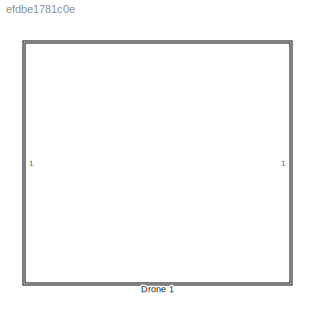
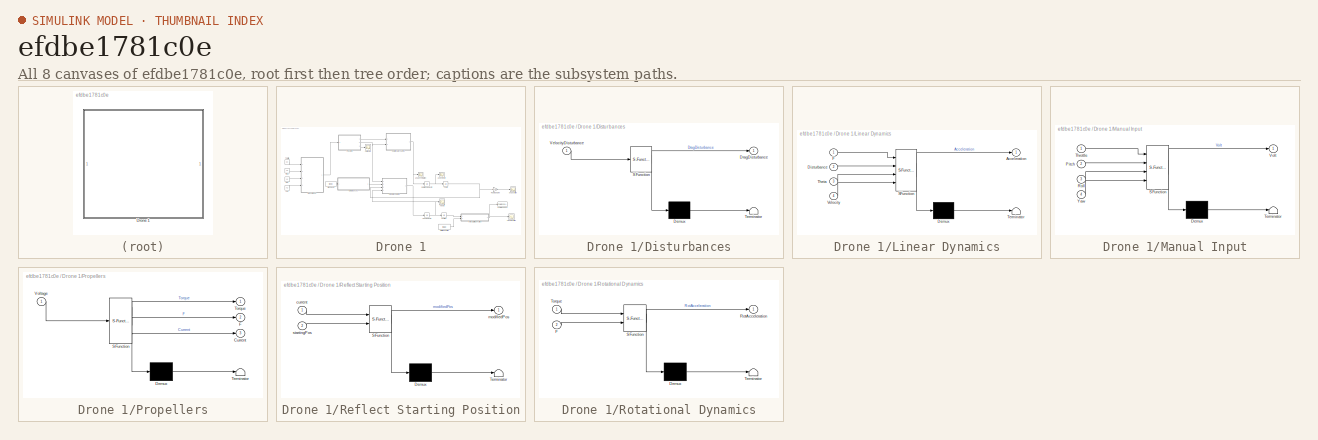
[diagram: thumbnail index - all 8 canvases of the model, root first then tree order]
MODEL slx_efdbe1781c0e
KIND model
CONFIG AbsTol = auto
CONFIG EnableMultiTasking = off
CONFIG FixedStep = auto
CONFIG MaxStep = auto
CONFIG MinStep = auto
CONFIG RelTol = 1e-3
CONFIG SampleTimeConstraint = Unconstrained
CONFIG Solver = VariableStepAuto
CONFIG SolverName = VariableStepAuto
CONFIG StartTime = 0.0
CONFIG StopTime = 5
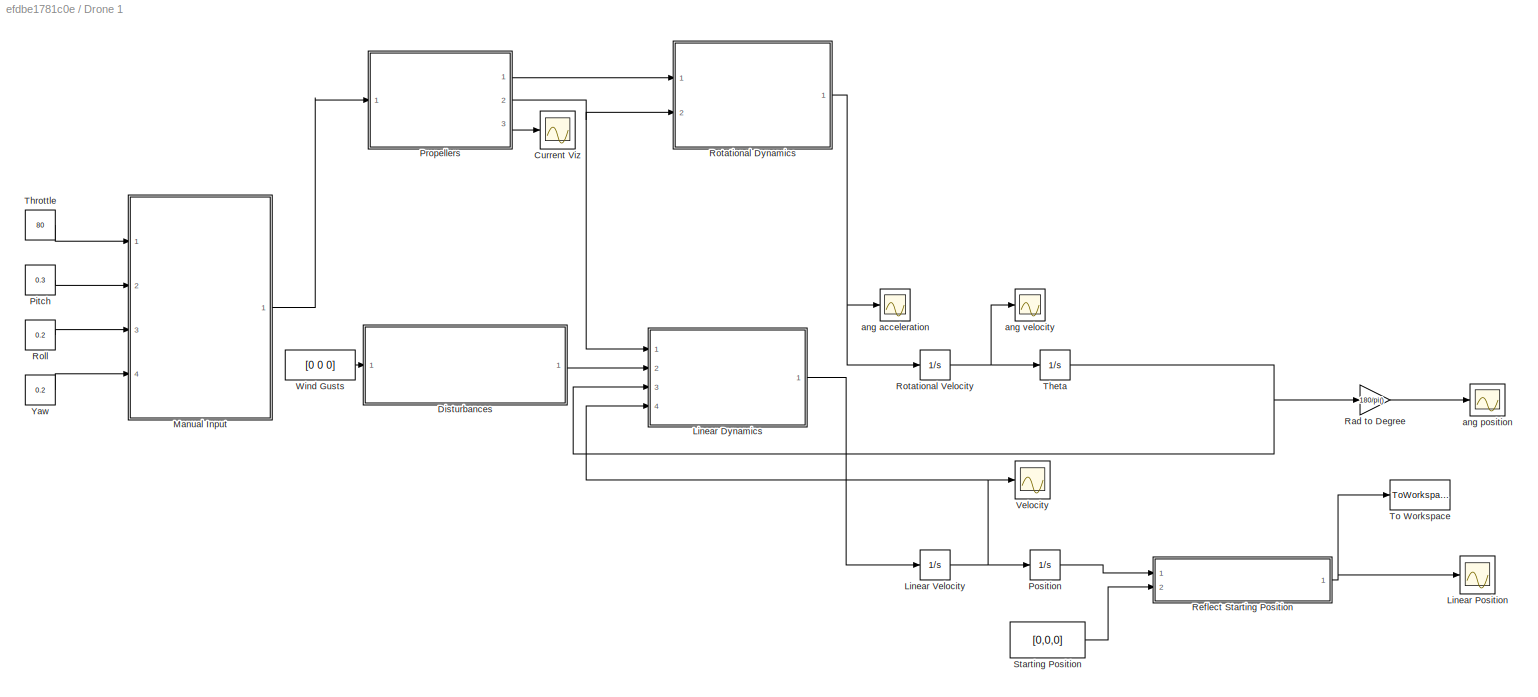
BLOCK [SubSystem] Drone 1
  Ports = []
  RequestExecContextInheritance = off
  Tag = Drone 1
BLOCK [Scope] Drone 1/Current Viz
  Floating = off
  NumInputPorts = 1
  Ports = [1]
  ScopeSpecificationString = Simulink.scopes.TimeScopeBlockCfg('CurrentConfiguration', extmgr.ConfigurationSet(extmgr.Configuration('Core','General UI',true),extmgr.Configuration('Core','Source UI',true),extmgr.Configuration('Sources','WiredSimulink',true,'DataLoggingVariableName','ScopeData4'),extmgr.Configuration('Visuals','Time Domain',true,'SerializedDisplays',{struct('MinYLimReal','54.35041','MaxYLimReal','56.64943','YLa...<+1543ch>
BLOCK [SubSystem] Drone 1/Disturbances
  ErrorFcn = Stateflow.Translate.translate
  PermitHierarchicalResolution = ExplicitOnly
  Ports = [1, 1]
  RequestExecContextInheritance = off
  SFBlockType = MATLAB Function
  TreatAsAtomicUnit = on
BLOCK [Demux] Drone 1/Disturbances/ Demux 
  Outputs = 1
  Ports = [1, 1]
BLOCK [S-Function] Drone 1/Disturbances/ SFunction 
  EnableBusSupport = on
  FunctionName = sf_sfun
  PortCounts = [1 2]
  Ports = [1, 2]
  SFcnIsStateOwnerBlock = off
  SFunctionDeploymentMode = off
  Tag = Stateflow S-Function ModeltheMavic_open_loop 4
BLOCK [Terminator] Drone 1/Disturbances/ Terminator 
BLOCK [Outport] Drone 1/Disturbances/DragDisturbance
  IconDisplay = Port number
BLOCK [Inport] Drone 1/Disturbances/VelocityDisturbance
  IconDisplay = Port number
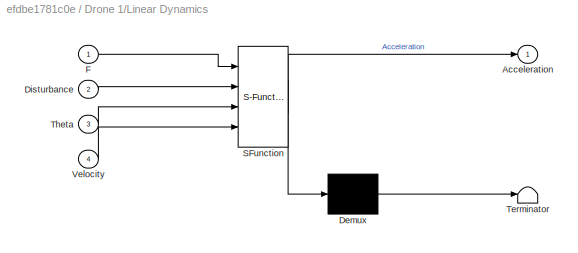
BLOCK [SubSystem] Drone 1/Linear Dynamics
  ErrorFcn = Stateflow.Translate.translate
  PermitHierarchicalResolution = ExplicitOnly
  Ports = [4, 1]
  RequestExecContextInheritance = off
  SFBlockType = MATLAB Function
  TreatAsAtomicUnit = on
BLOCK [Demux] Drone 1/Linear Dynamics/ Demux 
  Outputs = 1
  Ports = [1, 1]
BLOCK [S-Function] Drone 1/Linear Dynamics/ SFunction 
  EnableBusSupport = on
  FunctionName = sf_sfun
  PortCounts = [4 2]
  Ports = [4, 2]
  SFcnIsStateOwnerBlock = off
  SFunctionDeploymentMode = off
  Tag = Stateflow S-Function ModeltheMavic_open_loop 3
BLOCK [Terminator] Drone 1/Linear Dynamics/ Terminator 
BLOCK [Outport] Drone 1/Linear Dynamics/Acceleration
  IconDisplay = Port number
BLOCK [Inport] Drone 1/Linear Dynamics/Disturbance
  IconDisplay = Port number
  Port = 2
BLOCK [Inport] Drone 1/Linear Dynamics/F
  IconDisplay = Port number
BLOCK [Inport] Drone 1/Linear Dynamics/Theta
  IconDisplay = Port number
  Port = 3
BLOCK [Inport] Drone 1/Linear Dynamics/Velocity
  IconDisplay = Port number
  Port = 4
BLOCK [Scope] Drone 1/Linear Position
  Floating = off
  NumInputPorts = 1
  Ports = [1]
  ScopeSpecificationString = Simulink.scopes.TimeScopeBlockCfg('CurrentConfiguration', extmgr.ConfigurationSet(extmgr.Configuration('Core','General UI',true),extmgr.Configuration('Core','Source UI',true),extmgr.Configuration('Sources','WiredSimulink',true,'DataLoggingVariableName','ScopeData5'),extmgr.Configuration('Visuals','Time Domain',true,'SerializedDisplays',{struct('MinYLimReal','-19.83743','MaxYLimReal','70.01672','YL...<+1547ch>
BLOCK [Integrator] Drone 1/Linear Velocity
  Ports = [1, 1]
BLOCK [SubSystem] Drone 1/Manual Input
  ErrorFcn = Stateflow.Translate.translate
  PermitHierarchicalResolution = ExplicitOnly
  Ports = [4, 1]
  RequestExecContextInheritance = off
  SFBlockType = MATLAB Function
  TreatAsAtomicUnit = on
BLOCK [Demux] Drone 1/Manual Input/ Demux 
  Outputs = 1
  Ports = [1, 1]
BLOCK [S-Function] Drone 1/Manual Input/ SFunction 
  EnableBusSupport = on
  FunctionName = sf_sfun
  PortCounts = [4 2]
  Ports = [4, 2]
  SFcnIsStateOwnerBlock = off
  SFunctionDeploymentMode = off
  Tag = Stateflow S-Function ModeltheMavic_open_loop 5
BLOCK [Terminator] Drone 1/Manual Input/ Terminator 
BLOCK [Inport] Drone 1/Manual Input/Pitch
  IconDisplay = Port number
  Port = 2
BLOCK [Inport] Drone 1/Manual Input/Roll
  IconDisplay = Port number
  Port = 3
BLOCK [Inport] Drone 1/Manual Input/Throttle
  IconDisplay = Port number
BLOCK [Outport] Drone 1/Manual Input/Volt
  IconDisplay = Port number
BLOCK [Inport] Drone 1/Manual Input/Yaw
  IconDisplay = Port number
  Port = 4
BLOCK [Constant] Drone 1/Pitch
  Value = 0.3
BLOCK [Integrator] Drone 1/Position
  Ports = [1, 1]
BLOCK [SubSystem] Drone 1/Propellers
  ErrorFcn = Stateflow.Translate.translate
  PermitHierarchicalResolution = ExplicitOnly
  Ports = [1, 3]
  RequestExecContextInheritance = off
  SFBlockType = MATLAB Function
  TreatAsAtomicUnit = on
BLOCK [Demux] Drone 1/Propellers/ Demux 
  Outputs = 1
  Ports = [1, 1]
BLOCK [S-Function] Drone 1/Propellers/ SFunction 
  EnableBusSupport = on
  FunctionName = sf_sfun
  PortCounts = [1 4]
  Ports = [1, 4]
  SFcnIsStateOwnerBlock = off
  SFunctionDeploymentMode = off
  Tag = Stateflow S-Function ModeltheMavic_open_loop 2
BLOCK [Terminator] Drone 1/Propellers/ Terminator 
BLOCK [Outport] Drone 1/Propellers/Current
  IconDisplay = Port number
  Port = 3
BLOCK [Outport] Drone 1/Propellers/F
  IconDisplay = Port number
  Port = 2
BLOCK [Outport] Drone 1/Propellers/Torque
  IconDisplay = Port number
BLOCK [Inport] Drone 1/Propellers/Voltage
  IconDisplay = Port number
BLOCK [Gain] Drone 1/Rad to Degree
  Gain = 180/pi()
  OutDataTypeStr = Inherit: Inherit via internal rule
  ParamDataTypeStr = Inherit: Inherit via internal rule
  SaturateOnIntegerOverflow = off
BLOCK [SubSystem] Drone 1/Reflect Starting Position
  ErrorFcn = Stateflow.Translate.translate
  PermitHierarchicalResolution = ExplicitOnly
  Ports = [2, 1]
  RequestExecContextInheritance = off
  SFBlockType = MATLAB Function
  TreatAsAtomicUnit = on
BLOCK [Demux] Drone 1/Reflect Starting Position/ Demux 
  Outputs = 1
  Ports = [1, 1]
BLOCK [S-Function] Drone 1/Reflect Starting Position/ SFunction 
  EnableBusSupport = on
  FunctionName = sf_sfun
  PortCounts = [2 2]
  Ports = [2, 2]
  SFcnIsStateOwnerBlock = off
  SFunctionDeploymentMode = off
  Tag = Stateflow S-Function ModeltheMavic_open_loop 6
BLOCK [Terminator] Drone 1/Reflect Starting Position/ Terminator 
BLOCK [Inport] Drone 1/Reflect Starting Position/current
  IconDisplay = Port number
BLOCK [Outport] Drone 1/Reflect Starting Position/modifiedPos
  IconDisplay = Port number
BLOCK [Inport] Drone 1/Reflect Starting Position/startingPos
  IconDisplay = Port number
  Port = 2
BLOCK [Constant] Drone 1/Roll
  Value = 0.2
BLOCK [SubSystem] Drone 1/Rotational Dynamics
  ErrorFcn = Stateflow.Translate.translate
  PermitHierarchicalResolution = ExplicitOnly
  Ports = [2, 1]
  RequestExecContextInheritance = off
  SFBlockType = MATLAB Function
  TreatAsAtomicUnit = on
BLOCK [Demux] Drone 1/Rotational Dynamics/ Demux 
  Outputs = 1
  Ports = [1, 1]
BLOCK [S-Function] Drone 1/Rotational Dynamics/ SFunction 
  EnableBusSupport = on
  FunctionName = sf_sfun
  PortCounts = [2 2]
  Ports = [2, 2]
  SFcnIsStateOwnerBlock = off
  SFunctionDeploymentMode = off
  Tag = Stateflow S-Function ModeltheMavic_open_loop 1
BLOCK [Terminator] Drone 1/Rotational Dynamics/ Terminator 
BLOCK [Inport] Drone 1/Rotational Dynamics/F
  IconDisplay = Port number
  Port = 2
BLOCK [Outport] Drone 1/Rotational Dynamics/RotAcceleration
  IconDisplay = Port number
BLOCK [Inport] Drone 1/Rotational Dynamics/Torque
  IconDisplay = Port number
BLOCK [Integrator] Drone 1/Rotational Velocity
  Ports = [1, 1]
BLOCK [Constant] Drone 1/Starting Position
  Value = [0,0,0]
  VectorParams1D = off
BLOCK [Integrator] Drone 1/Theta
  Ports = [1, 1]
BLOCK [Constant] Drone 1/Throttle
  Value = 80
BLOCK [ToWorkspace] Drone 1/To Workspace
  FixptAsFi = on
  MaxDataPoints = inf
  Ports = [1]
  SampleTime = -1
  Save2DSignal = 2-D array (concatenate along first dimension)
  VariableName = Vector
BLOCK [Scope] Drone 1/Velocity 
  Floating = off
  NumInputPorts = 1
  Ports = [1]
  ScopeSpecificationString = Simulink.scopes.TimeScopeBlockCfg('CurrentConfiguration', extmgr.ConfigurationSet(extmgr.Configuration('Core','General UI',true),extmgr.Configuration('Core','Source UI',true),extmgr.Configuration('Sources','WiredSimulink',true),extmgr.Configuration('Visuals','Time Domain',true,'SerializedDisplays',{struct('MinYLimReal','-24.17736','MaxYLimReal','22.3042','YLabelReal','','MinYLimMag','0.00000','Max...<+1410ch>
BLOCK [Constant] Drone 1/Wind Gusts
  Value = [0 0 0]
BLOCK [Constant] Drone 1/Yaw
  Value = 0.2
BLOCK [Scope] Drone 1/ang acceleration
  Floating = off
  NumInputPorts = 1
  Ports = [1]
  ScopeSpecificationString = Simulink.scopes.TimeScopeBlockCfg('CurrentConfiguration', extmgr.ConfigurationSet(extmgr.Configuration('Core','General UI',true),extmgr.Configuration('Core','Source UI',true),extmgr.Configuration('Sources','WiredSimulink',true,'DataLoggingVariableName','ScopeData3'),extmgr.Configuration('Visuals','Time Domain',true,'SerializedDisplays',{struct('MinYLimReal','-0.04674','MaxYLimReal','0.4101','YLabe...<+1490ch>
BLOCK [Scope] Drone 1/ang position 
  Floating = off
  NumInputPorts = 1
  Ports = [1]
  ScopeSpecificationString = Simulink.scopes.TimeScopeBlockCfg('CurrentConfiguration', extmgr.ConfigurationSet(extmgr.Configuration('Core','General UI',true),extmgr.Configuration('Core','Source UI',true),extmgr.Configuration('Sources','WiredSimulink',true,'DataLoggingVariableName','ScopeData2'),extmgr.Configuration('Visuals','Time Domain',true,'SerializedDisplays',{struct('MinYLimReal','-33.4724','MaxYLimReal','293.71416','YL...<+1484ch>
BLOCK [Scope] Drone 1/ang velocity
  Floating = off
  NumInputPorts = 1
  Ports = [1]
  ScopeSpecificationString = Simulink.scopes.TimeScopeBlockCfg('CurrentConfiguration', extmgr.ConfigurationSet(extmgr.Configuration('Core','General UI',true),extmgr.Configuration('Core','Source UI',true),extmgr.Configuration('Sources','WiredSimulink',true,'DataLoggingVariableName','ScopeData1'),extmgr.Configuration('Visuals','Time Domain',true,'SerializedDisplays',{struct('MinYLimReal','-0.23368','MaxYLimReal','2.05051','YLab...<+1497ch>
LINE Drone 1/Disturbances:1 -> Drone 1/Linear Dynamics:2
LINE Drone 1/Linear Dynamics:1 -> Drone 1/Linear Velocity:1
NET Drone 1/Linear Velocity:1 -> Drone 1/Linear Dynamics:4, Drone 1/Position:1, Drone 1/Velocity :1
LINE Drone 1/Manual Input:1 -> Drone 1/Propellers:1
LINE Drone 1/Pitch:1 -> Drone 1/Manual Input:2
LINE Drone 1/Position:1 -> Drone 1/Reflect Starting Position:1
LINE Drone 1/Propellers:1 -> Drone 1/Rotational Dynamics:1
NET Drone 1/Propellers:2 -> Drone 1/Linear Dynamics:1, Drone 1/Rotational Dynamics:2
LINE Drone 1/Propellers:3 -> Drone 1/Current Viz:1
LINE Drone 1/Rad to Degree:1 -> Drone 1/ang position :1
NET Drone 1/Reflect Starting Position:1 -> Drone 1/Linear Position:1, Drone 1/To Workspace:1
LINE Drone 1/Roll:1 -> Drone 1/Manual Input:3
NET Drone 1/Rotational Dynamics:1 -> Drone 1/Rotational Velocity:1, Drone 1/ang acceleration:1
NET Drone 1/Rotational Velocity:1 -> Drone 1/Theta:1, Drone 1/ang velocity:1
LINE Drone 1/Starting Position:1 -> Drone 1/Reflect Starting Position:2
NET Drone 1/Theta:1 -> Drone 1/Linear Dynamics:3, Drone 1/Rad to Degree:1
LINE Drone 1/Throttle:1 -> Drone 1/Manual Input:1
LINE Drone 1/Wind Gusts:1 -> Drone 1/Disturbances:1
LINE Drone 1/Yaw:1 -> Drone 1/Manual Input:4
note: NET lines group one-source signal fan-out (src -> all destinations, sorted); 1:1 wires keep LINE
CHART Drone 1/Rotational Dynamics states=1 transitions=1
  STATE_LABEL 'eML_blk_kernel()'
  STATE_LABEL 'SCRIPT:\nfunction RotAcceleration = fcn(Torque, F)\nMoment = [0 0 0];\nRotAcceleration = [0 0 0]; \nInertia = [0.003, 0.003, 0.007]; %moment of inertia\n\nMoment(1) =  (F(3)+F(4)) * 0.237/2 - (F(1)+F(2))*0.237/2;\nMoment(2) =  (F(3)+F(2)) * 0.237/2 - (F(1)+F(4))*0.237/2;\nMoment(3) =  Torque(4) - Torque(1) + Torque(2) - Torque(3); %yaw\n\nfor i=1:3\n    RotAcceleration(i) = Moment(i) / Inertia(i);\nend\n'
CHART Drone 1/Propellers states=1 transitions=1
  STATE_LABEL 'eML_blk_kernel()'
  STATE_LABEL 'SCRIPT:\nfunction [Torque, F, Current] = fcn(Voltage)\n\nRPM = [0 0 0 0];\nTorque = [0 0 0 0];\nCurrent = [0 0 0 0];\nF = [0 0 0 0];\n\nfor i=1:4\n    RPM(i) = -2.6931*Voltage(i)^3 + 1400*Voltage(i);\n    Ct = 2 * (10^-15) * (RPM(i)^3) - 4 * (10^-11) * (RPM(i)^2) + 3 * (10^(-7)) * RPM(i) + 0.1013;\n    F(i) = Ct * 1.225*(RPM(i)/60)^2 * 0.2^4; %0.2 = diameter of propeller\n    Torque(i) = 4 * 10^-14 * RPM(i)^3...<+85ch>'
CHART Drone 1/Linear Dynamics states=1 transitions=1
  STATE_LABEL 'eML_blk_kernel()'
  STATE_LABEL 'SCRIPT:\nfunction Acceleration  = fcn(F,Disturbance,Theta,Velocity)\nm=0.743; %mass\ng=9.81; %gravity\nA=[0.0197 0.0197 0.0512]; %projected area \nair=1.225; %air density\nCd=1; %coefficient of drag\n\nAcceleration=[0 0 0];\nForce = [0 0 0];\nFprop = [0 0 0]; %thrust in x,y,z direction\n% Prop=[0;0;0];\n\nFprop(1)=sin(Theta(2))*cos(Theta(1))*(F(1)+F(2)+F(3)+F(4));\nFprop(2)=sin(Theta(1))*cos(Theta(2))*(F(1)+F(2...<+1227ch>'
CHART Drone 1/Disturbances states=1 transitions=1
  STATE_LABEL 'eML_blk_kernel()'
  STATE_LABEL 'SCRIPT:\nfunction DragDisturbance = fcn(VelocityDisturbance)\nA=[0.0197 0.0197 0.0197*2*1.3]; %x,y,z direction\nDragDisturbance=[0 0 0];\nrho=1.225; %sea level\nCd=1; %coefficient of drag\n\nfor i=1:3\n    if VelocityDisturbance(i) < 0\n        DragDisturbance(i)= 0.5*rho*VelocityDisturbance(i)^2*A(i)*Cd;\n    else\n        DragDisturbance(i)= -0.5*rho*VelocityDisturbance(i)^2*A(i)*Cd;\n    end\nend\n'
CHART Drone 1/Manual Input states=1 transitions=1
  STATE_LABEL 'eML_blk_kernel()'
  STATE_LABEL 'SCRIPT:\nfunction Volt = fcn(Throttle, Pitch, Roll, Yaw)\n\nCorrect = 0; %correction of final voltage\n%increase, decrease throttle level that symmetry works\n\n%condition of each input \n%Throttle <- increase and decrease pitch roll yaw symetrically\nif (Pitch/2+Roll/2+Yaw/2) > (100-Throttle) % -50 ~ +50\n   \n    Correct = ((Pitch/2 + Roll/2 + Yaw/2) - (100 - Throttle));\n       \nend\n\nif Throttle > 10 && (...<+867ch>'
CHART Drone 1/Reflect Starting Position states=1 transitions=1
  STATE_LABEL 'eML_blk_kernel()'
  STATE_LABEL 'SCRIPT:\nfunction modifiedPos = fcn(current, startingPos)\ndisp(current)\ndisp(startingPos)\nmodifiedPos = current + startingPos;\n'
